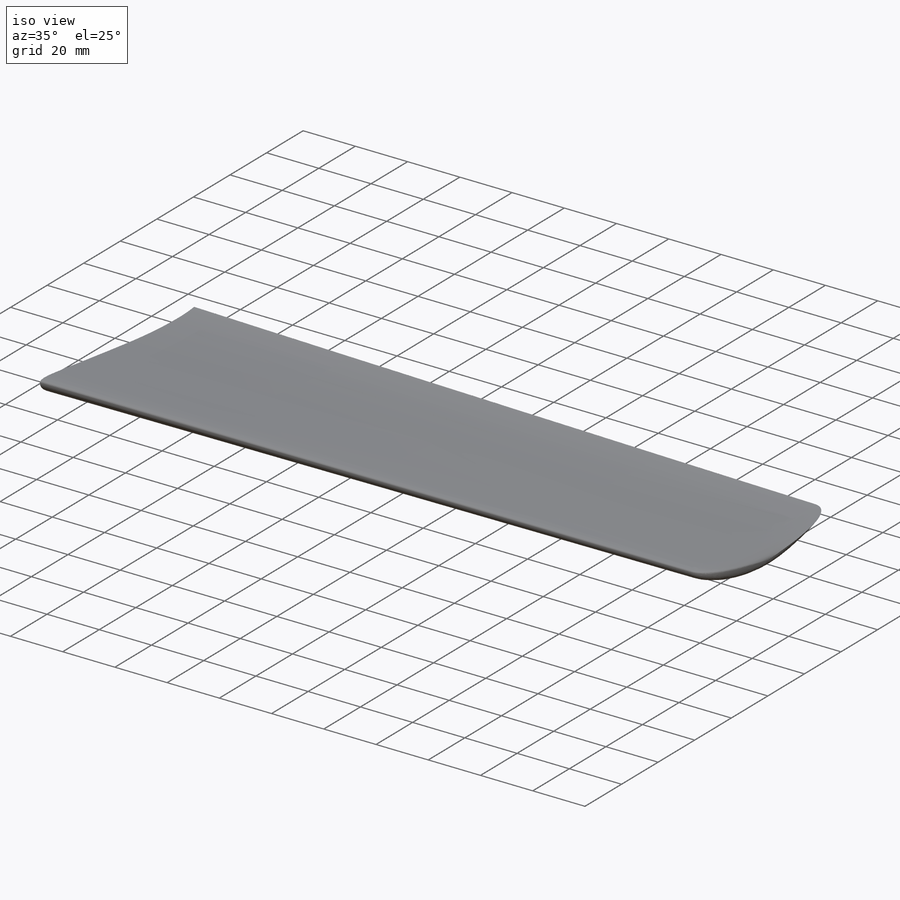
[diagram: iso view]
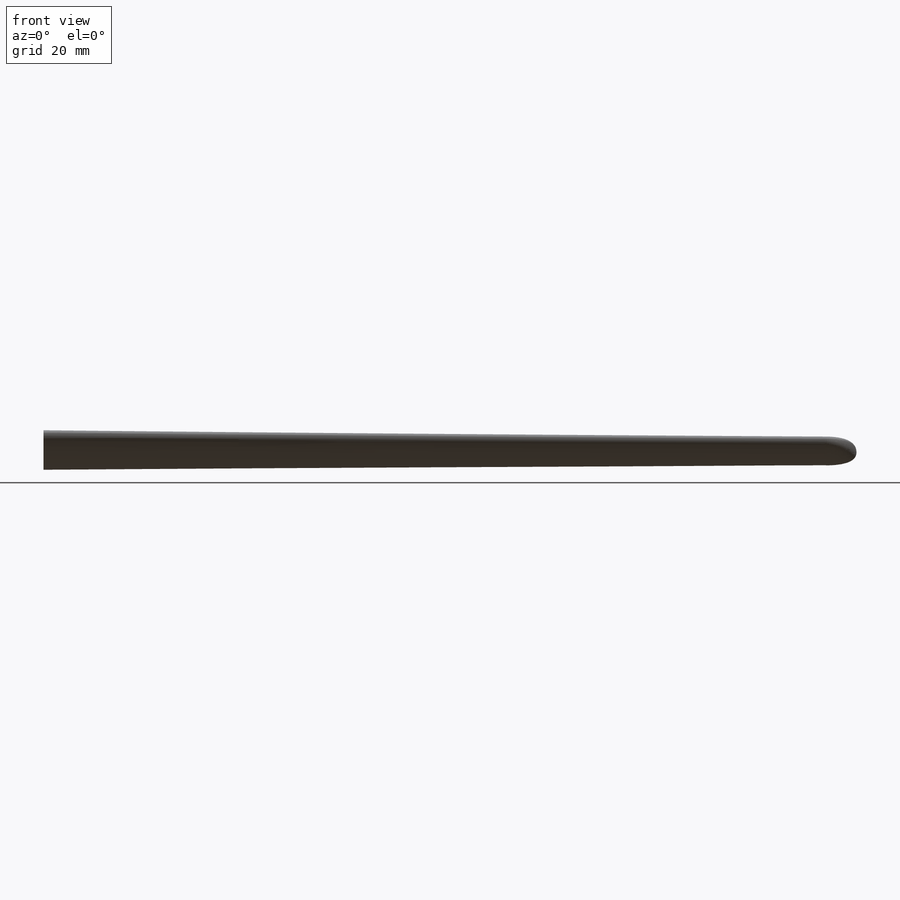
[diagram: front view]
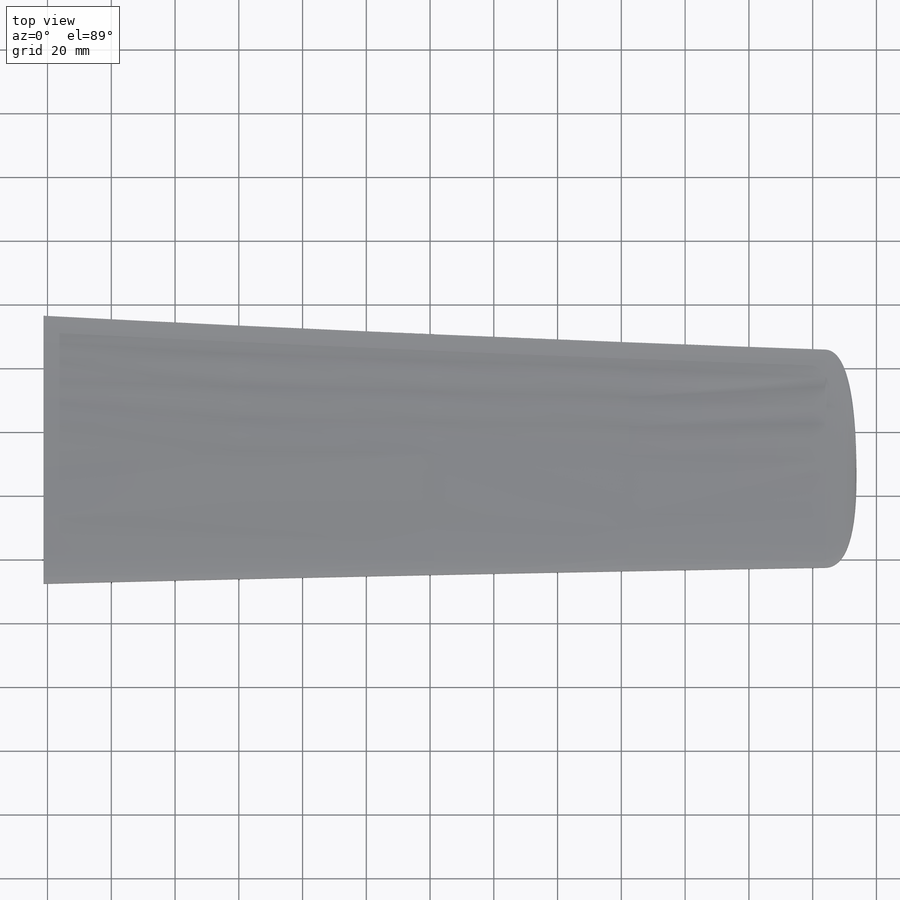
[diagram: top view]
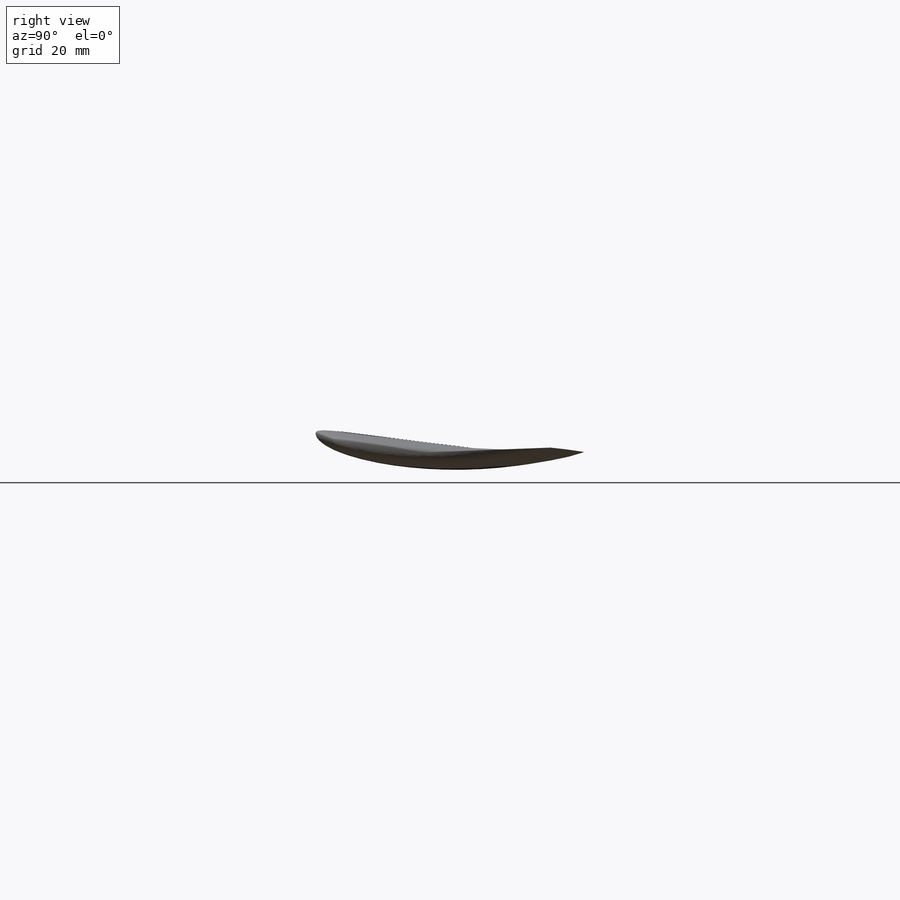
[diagram: right view]
SOLIDWORKS PART (.sldprt)
format: sldprt  version: not decoded by parser v0  size: 1,639,936 bytes
history: native  units: mm
features: plane x9, sketch x8, cut_extrude x2, material x1, sweep x1, cut_revolve x1, dome x1 (+8 scaffold rows collapsed)
feature tree (31):
  scaffold x8  (default folders/planes/origin — collapsed)
  material  "Materiál <není určen>"
  plane  "Přední rovina"
  plane  "Horní rovina"
  plane  "Pravá rovina"
  sketch  "Skica5"  dims[D1=250.0mm]
  plane  "Rovina1"
  plane  "Rovina2"
  sketch  "Skica1"
  sketch  "Skica2"  dims[D1=50.0mm]
  sketch  "Skica3"  dims[D1=50.0mm]
  sweep  "Táhnout po křivce1"
  sketch  "Skica4"  dims[D1=15.0mm]
  plane  "Rovina3"  Offset=780mm
  plane  "Rovina4"  Offset=980mm
  plane  "Rovina5"  Offset=440mm
  plane  "Rovina6"  Offset=20mm
  sketch  "Skica6"
  sketch  "Skica7"
  cut_revolve  "Odebrat rotací1"  Angle=360deg
  cut_extrude  "Odebrat vysunutím5"  [1 undecoded]
  sketch  "Skica8"
  cut_extrude  "Odebrat vysunutím6"  [1 undecoded]
  dome  "Kopule3"
decode coverage: 5 of 13 modeling features carry decoded parameters
note: 2 parameter values undecoded
note: suppression state not decoded; provenance and decode notes live in map.json
